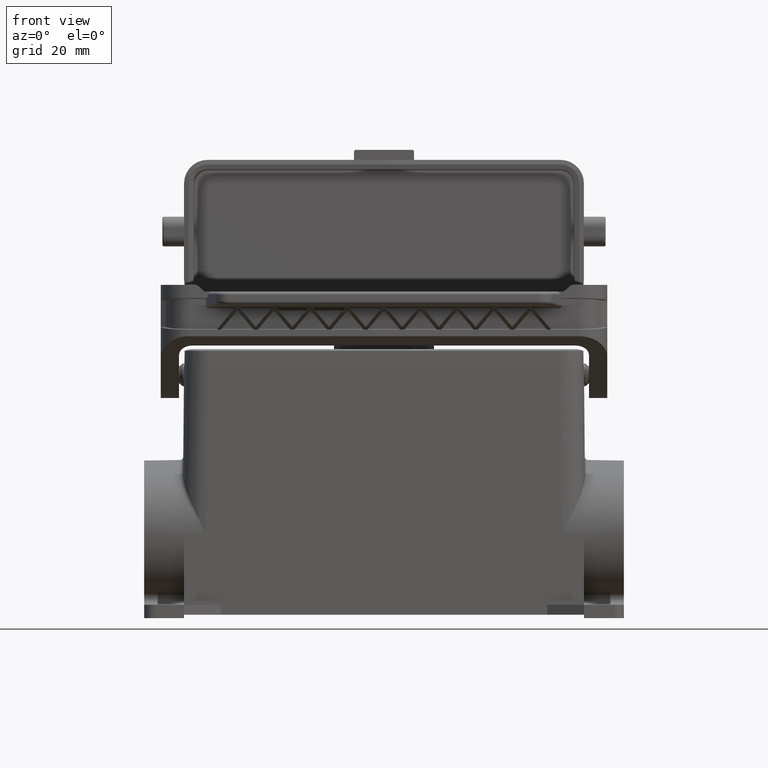
[diagram: clean part render]
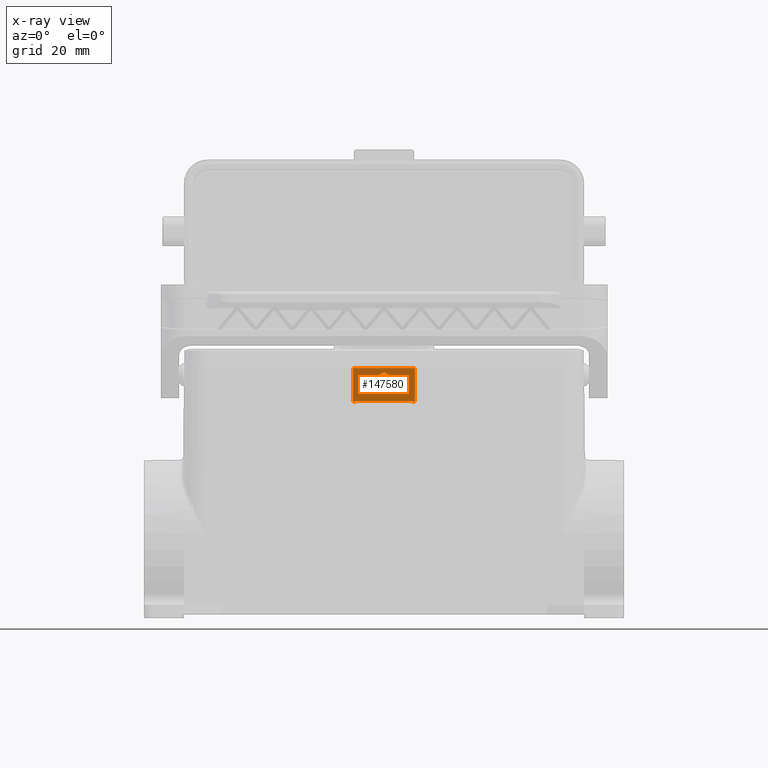
[diagram: x-ray — body ghosted, one internal face saturated and labeled with its STEP entity id]
A machine part, front view, then the same camera in x-ray: the body is ghosted and one INTERNAL B-rep face — a face not visible from any outside direction — is saturated and labeled: STEP entity #147580.
In plain terms, the highlighted planar face has unit normal (-0, -0.9659, -0.2588).
Its self-contained STEP definition (entity closure, byte-faithful):
#145760=CARTESIAN_POINT('',(69.568578,10.7405786057637,74.));
#145770=VERTEX_POINT('',#145760);
#145800=CARTESIAN_POINT('',(75.3185779999999,10.7405786057637,74.));
#145810=DIRECTION('',(-1.,5.68034814437482E-31,-3.54514046409509E-17));
#145820=VECTOR('',#145810,1.);
#145830=LINE('',#145800,#145820);
#145840=CARTESIAN_POINT('',(51.068578,10.7405786057637,74.));
#145850=VERTEX_POINT('',#145840);
#145860=EDGE_CURVE('',#145770,#145850,#145830,.T.);
#146300=CARTESIAN_POINT('',(75.3185779999999,8.06108668145252,64.));
#146310=DIRECTION('',(9.17549869671452E-18,0.965925826289068,
-0.258819045102521));
#146320=DIRECTION('',(-1.,5.47199393140922E-31,-3.54514046409509E-17));
#146330=AXIS2_PLACEMENT_3D('',#146300,#146310,#146320);
#146340=PLANE('',#146330);
#146350=CARTESIAN_POINT('',(56.0703705298599,9.75355576109421,
70.3163805954621));
#146360=DIRECTION('',(4.49828882566195E-18,-0.965925826289068,
0.258819045102521));
#146370=DIRECTION('',(1.,1.39681845981528E-17,3.47499212065498E-17));
#146380=AXIS2_PLACEMENT_3D('',#146350,#146360,#146370);
#146390=CIRCLE('',#146380,0.0833925298600247);
#146400=CARTESIAN_POINT('',(56.0289873339576,9.77229423338662,
70.3863135261136));
#146410=VERTEX_POINT('',#146400);
#146420=CARTESIAN_POINT('',(56.0289873339576,9.73481728880179,
70.2464476648106));
#146430=VERTEX_POINT('',#146420);
#146440=EDGE_CURVE('',#146410,#146430,#146390,.T.);
#146450=ORIENTED_EDGE('',*,*,#146440,.F.);
#146460=CARTESIAN_POINT('',(75.3185779999999,6.8811369769295,
59.5963677523442));
#146470=DIRECTION('',(-0.868182047616843,0.128437874048131,
0.479336671563758));
#146480=VECTOR('',#146470,1.);
#146490=LINE('',#146460,#146480);
#146500=CARTESIAN_POINT('',(60.2359034433113,9.11245085901045,
67.9237445279041));
#146510=VERTEX_POINT('',#146500);
#146520=EDGE_CURVE('',#146510,#146430,#146490,.T.);
#146530=ORIENTED_EDGE('',*,*,#146520,.T.);
#146540=CARTESIAN_POINT('',(60.318578,9.14988622029708,68.0634551982255)
);
#146550=DIRECTION('',(4.49828882566195E-18,-0.965925826289068,
0.258819045102521));
#146560=DIRECTION('',(1.,1.39681845981528E-17,3.47499212065498E-17));
#146570=AXIS2_PLACEMENT_3D('',#146540,#146550,#146560);
#146580=CIRCLE('',#146570,0.166599999999942);
#146590=CARTESIAN_POINT('',(60.4012539480019,9.11245106484207,
67.9237452960781));
#146600=VERTEX_POINT('',#146590);
#146610=EDGE_CURVE('',#146510,#146600,#146580,.T.);
#146620=ORIENTED_EDGE('',*,*,#146610,.F.);
#146630=CARTESIAN_POINT('',(75.3185779999999,11.3193524524571,
76.1600134019518));
#146640=DIRECTION('',(-0.868177274073502,-0.12844003550302,
-0.479344738223219));
#146650=VECTOR('',#146640,1.);
#146660=LINE('',#146630,#146650);
#146670=CARTESIAN_POINT('',(64.6082159740009,9.7348381833667,
70.2465256443884));
#146680=VERTEX_POINT('',#146670);
#146690=EDGE_CURVE('',#146680,#146600,#146660,.T.);
#146700=ORIENTED_EDGE('',*,*,#146690,.T.);
#146710=CARTESIAN_POINT('',(64.5668779999999,9.75355576109421,
70.3163805954621));
#146720=DIRECTION('',(4.49828882566195E-18,-0.965925826289068,
0.258819045102521));
#146730=DIRECTION('',(1.,1.39681845981528E-17,3.47499212065498E-17));
#146740=AXIS2_PLACEMENT_3D('',#146710,#146720,#146730);
#146750=CIRCLE('',#146740,0.0833000000000039);
#146760=CARTESIAN_POINT('',(64.6082159740009,9.77227333882172,
70.3862355465358));
#146770=VERTEX_POINT('',#146760);
#146780=EDGE_CURVE('',#146680,#146770,#146750,.T.);
#146790=ORIENTED_EDGE('',*,*,#146780,.F.);
#146800=CARTESIAN_POINT('',(75.3185779999999,8.1877590697312,
64.4727477889721));
#146810=DIRECTION('',(0.868177274073492,-0.128440035503024,
-0.479344738223236));
#146820=VECTOR('',#146810,1.);
#146830=LINE('',#146800,#146820);
#146840=CARTESIAN_POINT('',(60.4012539480019,10.3946604573464,
72.7090158948462));
#146850=VERTEX_POINT('',#146840);
#146860=EDGE_CURVE('',#146850,#146770,#146830,.T.);
#146870=ORIENTED_EDGE('',*,*,#146860,.T.);
#146880=CARTESIAN_POINT('',(60.318578,10.3572253018913,72.5693059926987)
);
#146890=DIRECTION('',(4.49828882566195E-18,-0.965925826289068,
0.258819045102521));
#146900=DIRECTION('',(1.,1.39681845981528E-17,3.47499212065498E-17));
#146910=AXIS2_PLACEMENT_3D('',#146880,#146890,#146900);
#146920=CIRCLE('',#146910,0.16660000000005);
#146930=CARTESIAN_POINT('',(60.2359034433113,10.394660663178,
72.7090166630203));
#146940=VERTEX_POINT('',#146930);
#146950=EDGE_CURVE('',#146850,#146940,#146920,.T.);
#146960=ORIENTED_EDGE('',*,*,#146950,.F.);
#146970=CARTESIAN_POINT('',(75.3185779999999,12.625974545259,
81.0363934385805));
#146980=DIRECTION('',(0.868182047616833,0.128437874048136,
0.479336671563775));
#146990=VECTOR('',#146980,1.);
#147000=LINE('',#146970,#146990);
#147010=EDGE_CURVE('',#146410,#146940,#147000,.T.);
#147020=ORIENTED_EDGE('',*,*,#147010,.T.);
#147030=EDGE_LOOP('',(#147020,#146960,#146870,#146790,#146700,#146620,
#146530,#146450));
#147040=FACE_BOUND('',#147030,.T.);
#147050=CARTESIAN_POINT('',(68.818578,29.803617848347,145.144231));
#147060=DIRECTION('',(5.55111512312578E-17,-0.258819045102521,
-0.965925826289068));
#147070=VECTOR('',#147060,1.);
#147080=LINE('',#147050,#147070);
#147090=CARTESIAN_POINT('',(68.818578,8.08996036607741,64.1077580580218)
);
#147100=VERTEX_POINT('',#147090);
#147110=CARTESIAN_POINT('',(68.818578,8.06108668145252,64.));
#147120=VERTEX_POINT('',#147110);
#147130=EDGE_CURVE('',#147100,#147120,#147080,.T.);
#147140=ORIENTED_EDGE('',*,*,#147130,.T.);
#147150=CARTESIAN_POINT('',(-6.30960038104269,8.08996036607741,
64.1077580580218));
#147160=DIRECTION('',(1.,6.7136323664083E-19,3.79569663504304E-17));
#147170=VECTOR('',#147160,1.);
#147180=LINE('',#147150,#147170);
#147190=CARTESIAN_POINT('',(51.818578,8.08996036607741,64.1077580580218)
);
#147200=VERTEX_POINT('',#147190);
#147210=EDGE_CURVE('',#147200,#147100,#147180,.T.);
#147220=ORIENTED_EDGE('',*,*,#147210,.T.);
#147230=CARTESIAN_POINT('',(51.818578,29.803617848347,145.144231));
#147240=DIRECTION('',(-5.55111512312578E-17,0.258819045102521,
0.965925826289068));
#147250=VECTOR('',#147240,1.);
#147260=LINE('',#147230,#147250);
#147270=CARTESIAN_POINT('',(51.818578,8.06108668145252,64.));
#147280=VERTEX_POINT('',#147270);
#147290=EDGE_CURVE('',#147280,#147200,#147260,.T.);
#147300=ORIENTED_EDGE('',*,*,#147290,.T.);
#147310=CARTESIAN_POINT('',(60.318578,8.06108668145252,64.));
#147320=DIRECTION('',(1.,-5.68034814437482E-31,3.54514046409509E-17));
#147330=VECTOR('',#147320,1.);
#147340=LINE('',#147310,#147330);
#147350=CARTESIAN_POINT('',(51.068578,8.06108668145252,64.));
#147360=VERTEX_POINT('',#147350);
#147370=EDGE_CURVE('',#147360,#147280,#147340,.T.);
#147380=ORIENTED_EDGE('',*,*,#147370,.T.);
#147390=CARTESIAN_POINT('',(51.068578,0.558509293381078,36.));
#147400=DIRECTION('',(-3.42434273209184E-17,0.258819045102521,
0.965925826289068));
#147410=VECTOR('',#147400,1.);
#147420=LINE('',#147390,#147410);
#147430=EDGE_CURVE('',#147360,#145850,#147420,.T.);
#147440=ORIENTED_EDGE('',*,*,#147430,.F.);
#147450=ORIENTED_EDGE('',*,*,#145860,.T.);
#147460=CARTESIAN_POINT('',(69.568578,0.558509293381078,36.));
#147470=DIRECTION('',(3.42434273209184E-17,-0.258819045102521,
-0.965925826289068));
#147480=VECTOR('',#147470,1.);
#147490=LINE('',#147460,#147480);
#147500=CARTESIAN_POINT('',(69.568578,8.06108668145252,64.));
#147510=VERTEX_POINT('',#147500);
#147520=EDGE_CURVE('',#145770,#147510,#147490,.T.);
#147530=ORIENTED_EDGE('',*,*,#147520,.F.);
#147540=EDGE_CURVE('',#147120,#147510,#147340,.T.);
#147550=ORIENTED_EDGE('',*,*,#147540,.T.);
#147560=EDGE_LOOP('',(#147550,#147530,#147450,#147440,#147380,#147300,
#147220,#147140));
#147570=FACE_OUTER_BOUND('',#147560,.T.);
#147580=ADVANCED_FACE('',(#147040,#147570),#146340,.F.);